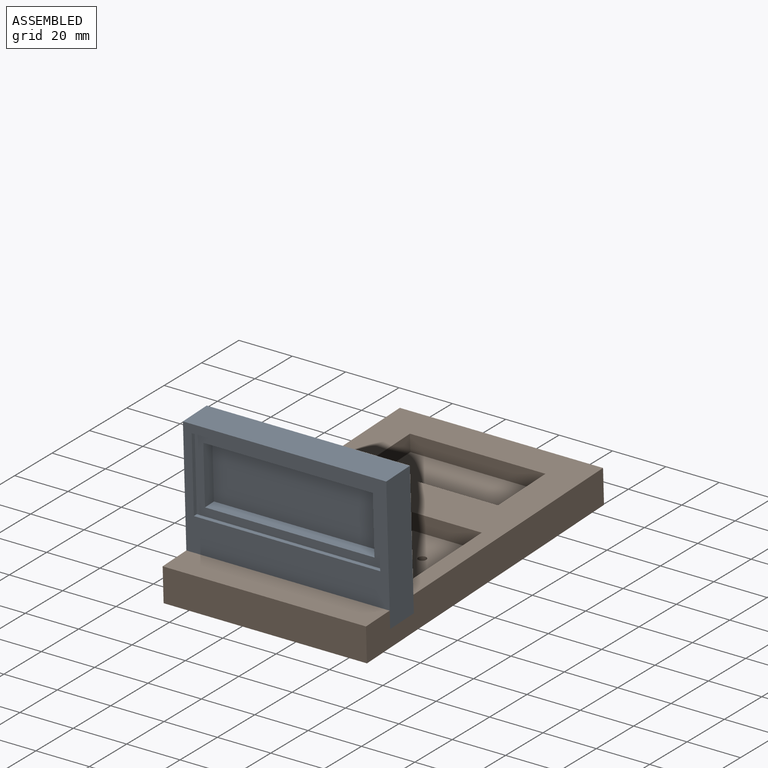
[diagram: assembled view]
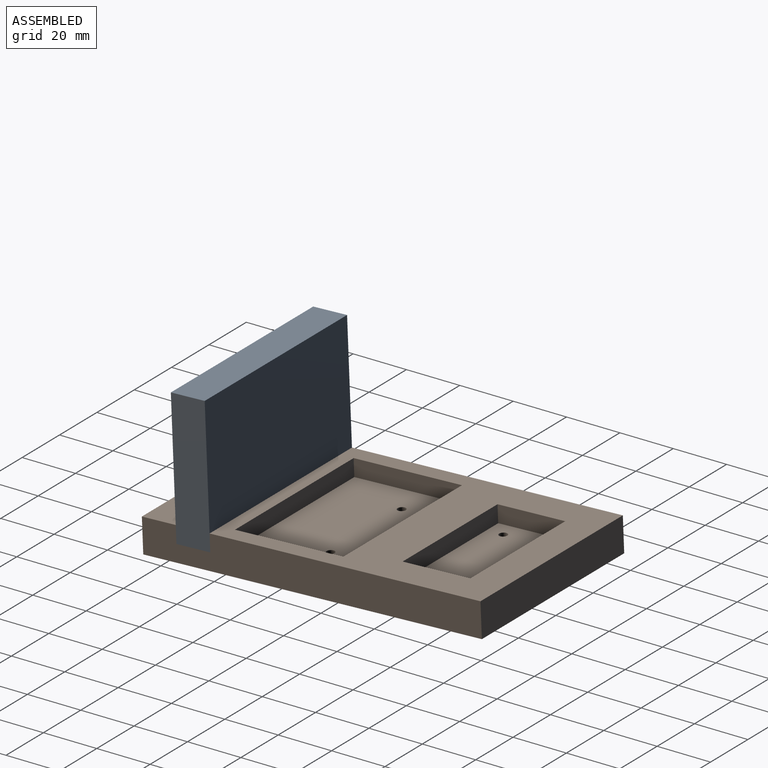
[diagram: assembled view, second angle]
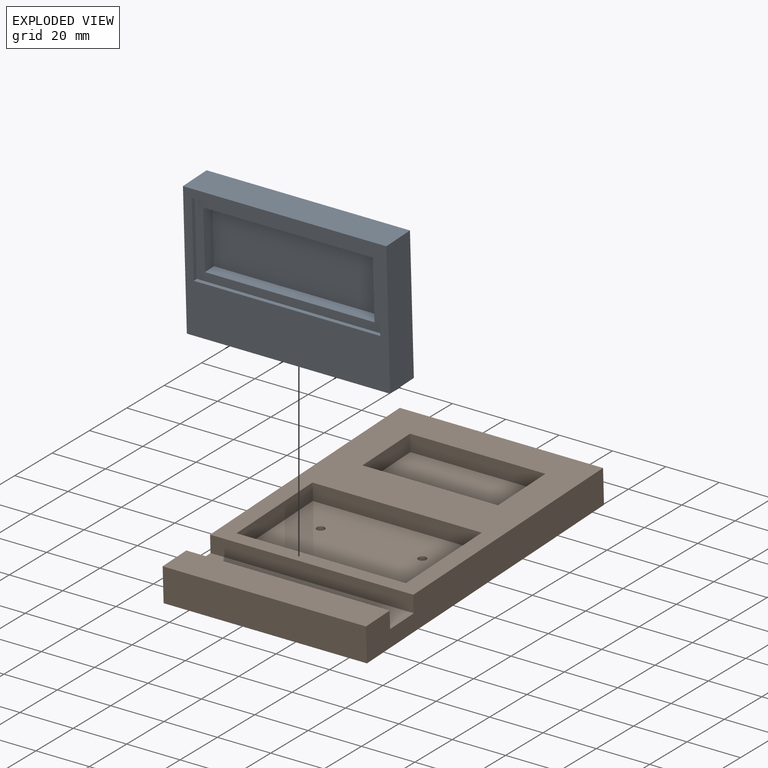
[diagram: exploded view]
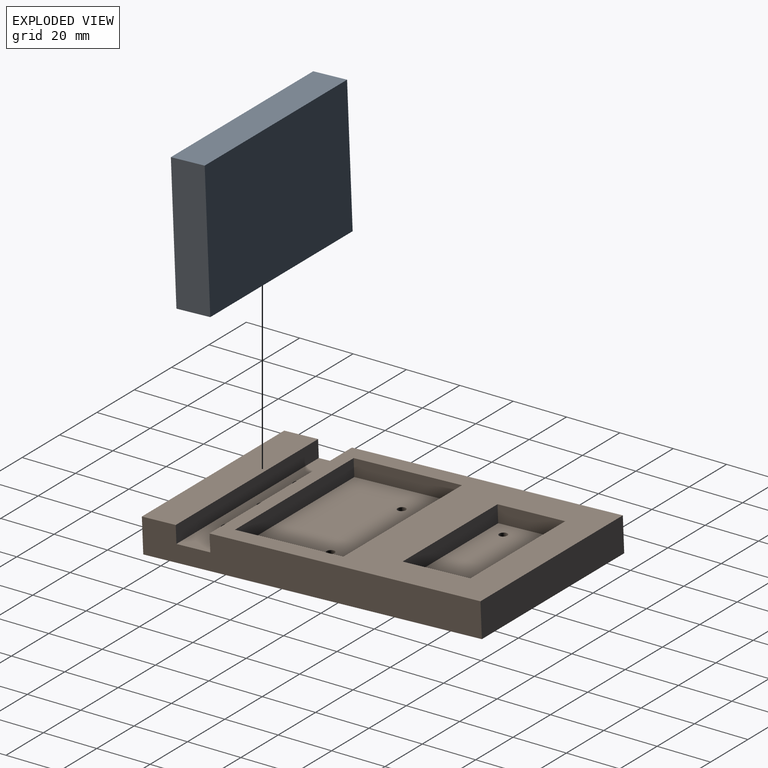
[diagram: exploded view, second angle]
ASSEMBLY  parts=2 mates=3
PART A: 22 faces, bbox 76.2x50.8x12.7 mm
  f0: plane 76.2x50.8mm, normal (0,0,1), area 1875mm2, adj f1,f2,f3,f4,f12,f13,f14,f15
  f1: plane 76.2x12.7mm, normal (0,1,0), area 967.7mm2, adj f0,f2,f4,f5
  f2: plane 50.8x12.7mm, normal (-1,0,0), area 645.2mm2, adj f0,f1,f3,f5
  f3: plane 76.2x12.7mm, normal (0,-1,0), area 906.9mm2, adj f0,f2,f4,f5,f6,f8,f10
  f4: plane 50.8x12.7mm, normal (1,0,0), area 645.2mm2, adj f0,f1,f3,f5
  f5: plane 76.2x50.8mm, normal (0,0,-1), area 3871mm2, adj f1,f2,f3,f4
  f6: cylinder r=2.54mm len=19.05mm, axis (0,-1,0), area 304mm2, adj f3,f7
  f7: plane 5.08x5.08mm, normal (0,-1,0), area 20.3mm2, adj f6
  f8: cylinder r=2.54mm len=19.05mm, axis (0,-1,0), area 304mm2, adj f3,f9
  f9: plane 5.08x5.08mm, normal (0,-1,0), area 20.3mm2, adj f8
  f10: cylinder r=2.54mm len=19.05mm, axis (0,-1,0), area 304mm2, adj f3,f11
  f11: plane 5.08x5.08mm, normal (0,-1,0), area 20.3mm2, adj f10
  f12: plane 69.85x1.59mm, normal (0,-1,0), area 110.9mm2, adj f0,f13,f15,f16
  f13: plane 28.58x1.59mm, normal (1,0,0), area 45.4mm2, adj f0,f12,f14,f16
  f14: plane 69.85x1.59mm, normal (0,1,0), area 110.9mm2, adj f0,f13,f15,f16
  f15: plane 28.58x1.59mm, normal (-1,0,0), area 45.4mm2, adj f0,f12,f14,f16
  f16: plane 69.85x28.58mm, normal (0,0,1), area 584.7mm2, adj f12,f13,f14,f15,f17,f18,f19,f20
  f17: plane 63.5x4.76mm, normal (0,-1,0), area 302.4mm2, adj f16,f18,f20,f21
  f18: plane 22.23x4.76mm, normal (1,0,0), area 105.8mm2, adj f16,f17,f19,f21
  f19: plane 63.5x4.76mm, normal (0,1,0), area 302.4mm2, adj f16,f18,f20,f21
  f20: plane 22.23x4.76mm, normal (-1,0,0), area 105.8mm2, adj f16,f17,f19,f21
  f21: plane 63.5x22.23mm, normal (0,0,1), area 1411.3mm2, adj f17,f18,f19,f20
PART B: 27 faces, bbox 76.2x127x12.7 mm
  f0: plane 101.6x76.2mm, normal (0,0,1), area 3871mm2, adj f6,f7,f8,f11,f17,f18,f19,f20
  f1: cylinder r=1.52mm len=6.35mm, axis (0,0,1), area 60.8mm2, adj f5,f26
  f2: cylinder r=1.52mm len=6.35mm, axis (0,0,1), area 60.8mm2, adj f5,f26
  f3: cylinder r=1.52mm len=6.35mm, axis (0,0,1), area 60.8mm2, adj f5,f21
  f4: cylinder r=1.52mm len=6.35mm, axis (0,0,1), area 60.8mm2, adj f5,f21
  f5: plane 127x76.2mm, normal (0,0,-1), area 9587.4mm2, adj f1,f2,f3,f4,f6,f7,f8,f9
  f6: plane 127x12.7mm, normal (1,0,0), area 1532.3mm2, adj f0,f5,f7,f9,f10,f11,f12,f13
  f7: plane 76.2x12.7mm, normal (0,1,0), area 967.7mm2, adj f0,f5,f6,f8
  f8: plane 127x12.7mm, normal (-1,0,0), area 1532.3mm2, adj f0,f5,f7,f9,f10,f11,f12,f13
  f9: plane 76.2x12.7mm, normal (0,-1,0), area 967.7mm2, adj f5,f6,f8,f10
  f10: plane 76.2x12.7mm, normal (0,0,1), area 967.7mm2, adj f6,f8,f9,f12
  f11: plane 76.2x6.35mm, normal (0,-1,0), area 483.9mm2, adj f0,f6,f8,f13
  f12: plane 76.2x6.35mm, normal (0,1,0), area 483.9mm2, adj f6,f8,f10,f13
  f13: plane 76.2x12.7mm, normal (0,0,1), area 906.9mm2, adj f6,f8,f11,f12,f14,f15,f16
  f14: cylinder r=2.54mm len=6.35mm, axis (0,0,1), area 101.3mm2, adj f5,f13
  f15: cylinder r=2.54mm len=6.35mm, axis (0,0,1), area 101.3mm2, adj f5,f13
  f16: cylinder r=2.54mm len=6.35mm, axis (0,0,1), area 101.3mm2, adj f5,f13
  f17: plane 63.5x6.35mm, normal (0,-1,0), area 403.2mm2, adj f0,f18,f20,f21
  f18: plane 40.64x6.35mm, normal (1,0,0), area 258.1mm2, adj f0,f17,f19,f21
  f19: plane 63.5x6.35mm, normal (0,1,0), area 403.2mm2, adj f0,f18,f20,f21
  f20: plane 40.64x6.35mm, normal (-1,0,0), area 258.1mm2, adj f0,f17,f19,f21
  f21: plane 63.5x40.64mm, normal (0,0,1), area 2566mm2, adj f3,f4,f17,f18,f19,f20
  f22: plane 50.8x6.35mm, normal (0,-1,0), area 322.6mm2, adj f0,f23,f25,f26
  f23: plane 25.4x6.35mm, normal (1,0,0), area 161.3mm2, adj f0,f22,f24,f26
  f24: plane 50.8x6.35mm, normal (0,1,0), area 322.6mm2, adj f0,f23,f25,f26
  f25: plane 25.4x6.35mm, normal (-1,0,0), area 161.3mm2, adj f0,f22,f24,f26
  f26: plane 50.8x25.4mm, normal (0,0,1), area 1275.7mm2, adj f1,f2,f22,f23,f24,f25
PLACE A rot(axis=(1,0,0),92.4deg) t=(-44.89,-61.63,89.26)mm
PLACE B rot(axis=(1,0,0),2.4deg) t=(-44.89,42.24,36.34)mm
MATE cylindrical A.f6 <-> B.f16  axis (0,0.04,-1) through (12.26,-65.88,38.24)mm
MATE planar A.f3 <-> B.f13  axis (0,0.04,-1) through (-44.89,-65.88,38.24)mm
MATE planar B.f6 <-> A.f4  axis (1,0,0) through (31.31,-21.21,33.72)mm
